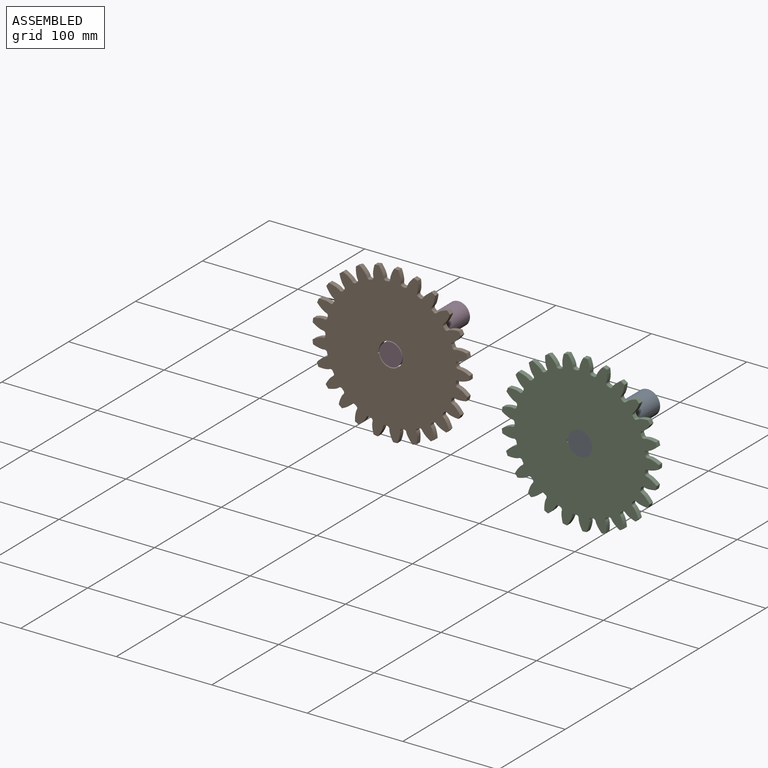
[diagram: assembled view]
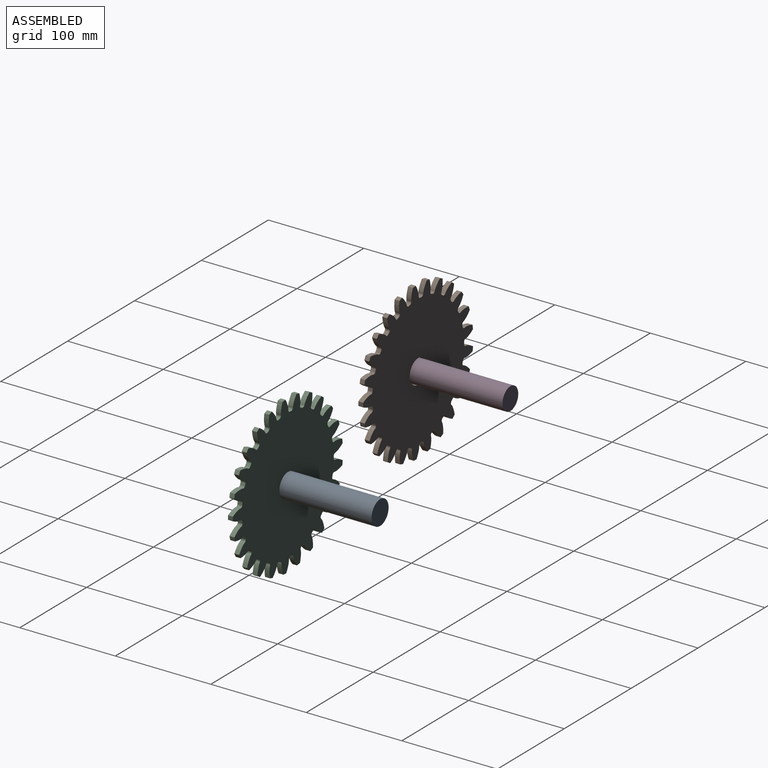
[diagram: assembled view, second angle]
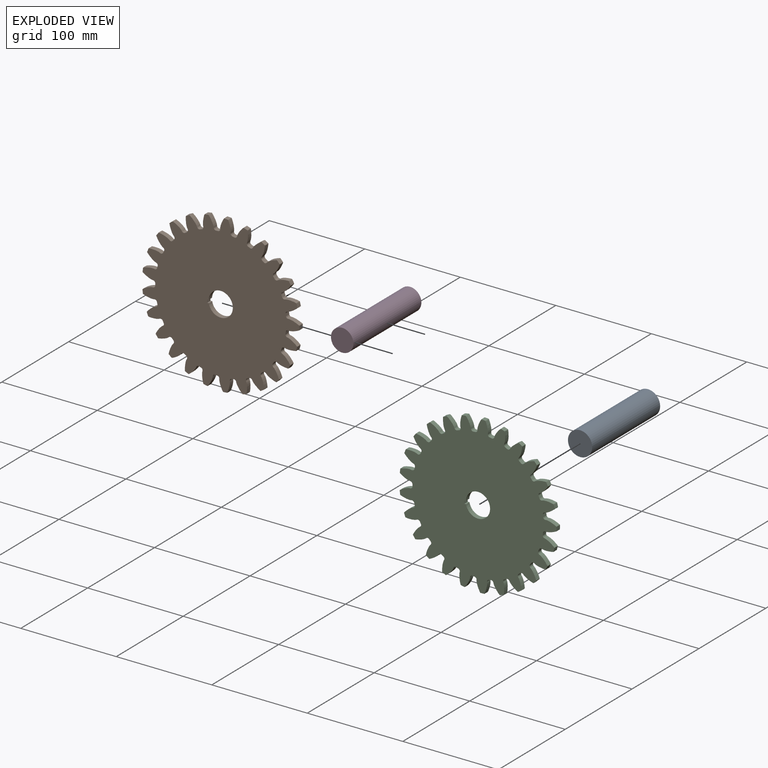
[diagram: exploded view]
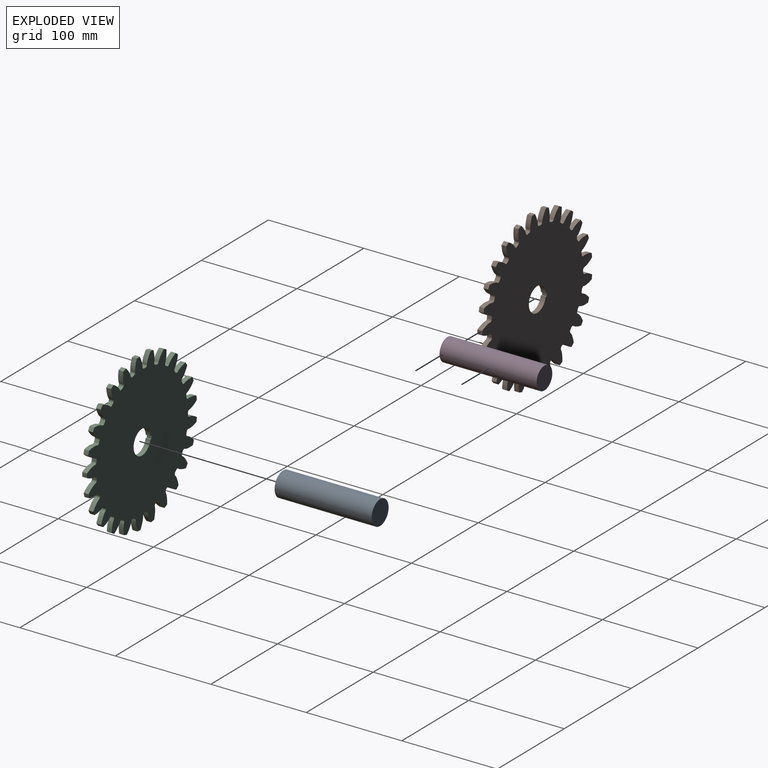
[diagram: exploded view, second angle]
ASSEMBLY  parts=4 mates=2
PART A: 3 faces, bbox 25.4x101.6x25.4 mm
  f0: cylinder r=12.7mm len=101.6mm, axis (0,1,0), area 8107.3mm2, adj f1,f2
  f1: plane 25.4x25.4mm, normal (0,-1,0), area 506.7mm2, adj f0
  f2: plane 25.4x25.4mm, normal (0,1,0), area 506.7mm2, adj f0
PART B: 156 faces, bbox 164.2x5.1x164.5 mm
  f0: cylinder r=82.3mm len=5.08mm, axis (0,1,0), area 22.3mm2, adj f24,f30,f141,f153
  f1: cylinder r=82.3mm len=5.08mm, axis (0,1,0), area 22.3mm2, adj f24,f30,f148,f151
  f2: cylinder r=82.3mm len=5.08mm, axis (0,1,0), area 22.3mm2, adj f24,f30,f136,f143
  f3: cylinder r=82.3mm len=5.08mm, axis (0,1,0), area 22.3mm2, adj f24,f30,f131,f138
  f4: cylinder r=82.3mm len=5.08mm, axis (0,1,0), area 22.3mm2, adj f24,f30,f126,f133
  f5: cylinder r=82.3mm len=5.08mm, axis (0,1,0), area 22.3mm2, adj f24,f30,f116,f128
  f6: cylinder r=82.3mm len=5.08mm, axis (0,1,0), area 22.3mm2, adj f24,f30,f111,f123
  f7: cylinder r=82.3mm len=5.08mm, axis (0,1,0), area 22.3mm2, adj f24,f30,f118,f121
  f8: cylinder r=82.3mm len=5.08mm, axis (0,1,0), area 22.3mm2, adj f24,f30,f106,f113
  f9: cylinder r=82.3mm len=5.08mm, axis (0,1,0), area 22.3mm2, adj f24,f30,f101,f108
  f10: cylinder r=82.3mm len=5.08mm, axis (0,1,0), area 22.3mm2, adj f24,f30,f96,f103
  f11: cylinder r=82.3mm len=5.08mm, axis (0,1,0), area 22.3mm2, adj f24,f30,f81,f98
  f12: cylinder r=82.3mm len=5.08mm, axis (0,1,0), area 22.3mm2, adj f24,f30,f31,f93
  f13: cylinder r=82.3mm len=5.08mm, axis (0,1,0), area 22.3mm2, adj f24,f30,f88,f91
  f14: cylinder r=82.3mm len=5.08mm, axis (0,1,0), area 22.3mm2, adj f24,f30,f76,f83
  f15: cylinder r=82.3mm len=5.08mm, axis (0,1,0), area 22.3mm2, adj f24,f30,f78,f86
  f16: cylinder r=82.3mm len=5.08mm, axis (0,1,0), area 22.3mm2, adj f24,f30,f73,f146
  f17: cylinder r=82.3mm len=5.08mm, axis (0,1,0), area 22.3mm2, adj f24,f30,f68,f71
  f18: cylinder r=82.3mm len=5.08mm, axis (0,1,0), area 22.3mm2, adj f24,f30,f63,f66
  f19: cylinder r=82.3mm len=5.08mm, axis (0,1,0), area 22.3mm2, adj f24,f30,f58,f61
  f20: cylinder r=82.3mm len=5.08mm, axis (0,1,0), area 22.3mm2, adj f24,f30,f46,f53
  f21: cylinder r=82.3mm len=5.08mm, axis (0,1,0), area 22.3mm2, adj f24,f30,f36,f48
  f22: cylinder r=82.3mm len=5.08mm, axis (0,1,0), area 22.3mm2, adj f24,f30,f43,f56
  f23: cylinder r=82.3mm len=5.08mm, axis (0,1,0), area 22.3mm2, adj f24,f30,f38,f41
  f24: plane 164.51x164.2mm, normal (0,-1,0), area 17460.3mm2, adj f0,f1,f2,f3,f4,f5,f6,f7
  f25: plane 5.08x1.69mm, normal (-1,0,0), area 8.6mm2, adj f24,f26,f28,f30
  f26: cylinder r=12.7mm len=25.4mm, axis (0,1,0), area 389.2mm2, adj f24,f25,f27,f30
  f27: plane 5.08x1.69mm, normal (1,0,0), area 8.6mm2, adj f24,f26,f28,f30
  f28: plane 5.08x3.18mm, normal (0,0,-1), area 16.1mm2, adj f24,f25,f27,f30
  f29: cylinder r=82.3mm len=5.08mm, axis (0,1,0), area 22.3mm2, adj f24,f30,f33,f51
  f30: plane 164.51x164.2mm, normal (0,1,0), area 17460.3mm2, adj f0,f1,f2,f3,f4,f5,f6,f7
  f31: extruded ~11.13x5.08mm, area 62.2mm2, adj f12,f24,f30,f34
  f32: cylinder r=68.58mm len=5.08mm, axis (0,1,0), area 10.6mm2, adj f24,f30,f34,f35
  f33: extruded ~11.13x5.08mm, area 62.2mm2, adj f24,f29,f30,f35
  f34: cylinder r=2.31mm len=5.08mm, axis (0,1,0), area 18mm2, adj f24,f30,f31,f32
  f35: cylinder r=2.31mm len=5.08mm, axis (0,1,0), area 18mm2, adj f24,f30,f32,f33
  f36: extruded ~11.36x5.08mm, area 62.2mm2, adj f21,f24,f30,f39
  f37: cylinder r=68.58mm len=5.08mm, axis (0,1,0), area 10.6mm2, adj f24,f30,f39,f40
  f38: extruded ~11.08x5.08mm, area 62.2mm2, adj f23,f24,f30,f40
  f39: cylinder r=2.31mm len=5.08mm, axis (0,1,0), area 18mm2, adj f24,f30,f36,f37
  f40: cylinder r=2.31mm len=5.08mm, axis (0,1,0), area 18mm2, adj f24,f30,f37,f38
  f41: extruded ~9.97x6.85mm, area 62.2mm2, adj f23,f24,f30,f44
  f42: cylinder r=68.58mm len=5.08mm, axis (0,1,0), area 10.6mm2, adj f24,f30,f44,f45
  f43: extruded ~11.94x5.08mm, area 62.2mm2, adj f22,f24,f30,f45
  f44: cylinder r=2.31mm len=5.08mm, axis (0,1,0), area 18mm2, adj f24,f30,f41,f42
  f45: cylinder r=2.31mm len=5.08mm, axis (0,1,0), area 18mm2, adj f24,f30,f42,f43
  f46: extruded ~12.04x5.08mm, area 62.2mm2, adj f20,f24,f30,f49
  f47: cylinder r=68.58mm len=5.08mm, axis (0,1,0), area 10.6mm2, adj f24,f30,f49,f50
  f48: extruded ~9.52x7.46mm, area 62.2mm2, adj f21,f24,f30,f50
  f49: cylinder r=2.31mm len=5.08mm, axis (0,1,0), area 18mm2, adj f24,f30,f46,f47
  f50: cylinder r=2.31mm len=5.08mm, axis (0,1,0), area 18mm2, adj f24,f30,f47,f48
  f51: extruded ~11.96x5.08mm, area 62.2mm2, adj f24,f29,f30,f54
  f52: cylinder r=68.58mm len=5.08mm, axis (0,1,0), area 10.6mm2, adj f24,f30,f54,f55
  f53: extruded ~9.6x7.37mm, area 62.2mm2, adj f20,f24,f30,f55
  f54: cylinder r=2.31mm len=5.08mm, axis (0,1,0), area 18mm2, adj f24,f30,f51,f52
  f55: cylinder r=2.31mm len=5.08mm, axis (0,1,0), area 18mm2, adj f24,f30,f52,f53
  f56: extruded ~9.12x7.96mm, area 62.2mm2, adj f22,f24,f30,f59
  f57: cylinder r=68.58mm len=5.08mm, axis (0,1,0), area 10.6mm2, adj f24,f30,f59,f60
  f58: extruded ~12.05x5.08mm, area 62.2mm2, adj f19,f24,f30,f60
  f59: cylinder r=2.31mm len=5.08mm, axis (0,1,0), area 18mm2, adj f24,f30,f56,f57
  f60: cylinder r=2.31mm len=5.08mm, axis (0,1,0), area 18mm2, adj f24,f30,f57,f58
  f61: extruded ~10.81x5.44mm, area 62.2mm2, adj f19,f24,f30,f64
  f62: cylinder r=68.58mm len=5.08mm, axis (0,1,0), area 10.6mm2, adj f24,f30,f64,f65
  f63: extruded ~11.4x5.08mm, area 62.2mm2, adj f18,f24,f30,f65
  f64: cylinder r=2.31mm len=5.08mm, axis (0,1,0), area 18mm2, adj f24,f30,f61,f62
  f65: cylinder r=2.31mm len=5.08mm, axis (0,1,0), area 18mm2, adj f24,f30,f62,f63
  f66: extruded ~11.82x5.08mm, area 62.2mm2, adj f18,f24,f30,f69
  f67: cylinder r=68.58mm len=5.08mm, axis (0,1,0), area 10.6mm2, adj f24,f30,f69,f70
  f68: extruded ~10.04x6.75mm, area 62.2mm2, adj f17,f24,f30,f70
  f69: cylinder r=2.31mm len=5.08mm, axis (0,1,0), area 18mm2, adj f24,f30,f66,f67
  f70: cylinder r=2.31mm len=5.08mm, axis (0,1,0), area 18mm2, adj f24,f30,f67,f68
  f71: extruded ~12.09x5.08mm, area 62.2mm2, adj f17,f24,f30,f74
  f72: cylinder r=68.58mm len=5.08mm, axis (0,1,0), area 10.6mm2, adj f24,f30,f74,f75
  f73: extruded ~9.04x8.05mm, area 62.2mm2, adj f16,f24,f30,f75
  f74: cylinder r=2.31mm len=5.08mm, axis (0,1,0), area 18mm2, adj f24,f30,f71,f72
  f75: cylinder r=2.31mm len=5.08mm, axis (0,1,0), area 18mm2, adj f24,f30,f72,f73
  f76: extruded ~11.08x5.08mm, area 62.2mm2, adj f14,f24,f30,f79
  f77: cylinder r=68.58mm len=5.08mm, axis (0,1,0), area 10.6mm2, adj f24,f30,f79,f80
  f78: extruded ~11.36x5.08mm, area 62.2mm2, adj f15,f24,f30,f80
  f79: cylinder r=2.31mm len=5.08mm, axis (0,1,0), area 18mm2, adj f24,f30,f76,f77
  f80: cylinder r=2.31mm len=5.08mm, axis (0,1,0), area 18mm2, adj f24,f30,f77,f78
  f81: extruded ~11.94x5.08mm, area 62.2mm2, adj f11,f24,f30,f84
  f82: cylinder r=68.58mm len=5.08mm, axis (0,1,0), area 10.6mm2, adj f24,f30,f84,f85
  f83: extruded ~9.97x6.85mm, area 62.2mm2, adj f14,f24,f30,f85
  f84: cylinder r=2.31mm len=5.08mm, axis (0,1,0), area 18mm2, adj f24,f30,f81,f82
  f85: cylinder r=2.31mm len=5.08mm, axis (0,1,0), area 18mm2, adj f24,f30,f82,f83
  f86: extruded ~9.52x7.46mm, area 62.2mm2, adj f15,f24,f30,f89
  f87: cylinder r=68.58mm len=5.08mm, axis (0,1,0), area 10.6mm2, adj f24,f30,f89,f90
  f88: extruded ~12.04x5.08mm, area 62.2mm2, adj f13,f24,f30,f90
  f89: cylinder r=2.31mm len=5.08mm, axis (0,1,0), area 18mm2, adj f24,f30,f86,f87
  f90: cylinder r=2.31mm len=5.08mm, axis (0,1,0), area 18mm2, adj f24,f30,f87,f88
  f91: extruded ~9.6x7.37mm, area 62.2mm2, adj f13,f24,f30,f94
  f92: cylinder r=68.58mm len=5.08mm, axis (0,1,0), area 10.6mm2, adj f24,f30,f94,f95
  f93: extruded ~11.96x5.08mm, area 62.2mm2, adj f12,f24,f30,f95
  f94: cylinder r=2.31mm len=5.08mm, axis (0,1,0), area 18mm2, adj f24,f30,f91,f92
  f95: cylinder r=2.31mm len=5.08mm, axis (0,1,0), area 18mm2, adj f24,f30,f92,f93
  f96: extruded ~12.05x5.08mm, area 62.2mm2, adj f10,f24,f30,f99
  f97: cylinder r=68.58mm len=5.08mm, axis (0,1,0), area 10.6mm2, adj f24,f30,f99,f100
  f98: extruded ~9.12x7.96mm, area 62.2mm2, adj f11,f24,f30,f100
  f99: cylinder r=2.31mm len=5.08mm, axis (0,1,0), area 18mm2, adj f24,f30,f96,f97
  f100: cylinder r=2.31mm len=5.08mm, axis (0,1,0), area 18mm2, adj f24,f30,f97,f98
  f101: extruded ~11.4x5.08mm, area 62.2mm2, adj f9,f24,f30,f104
  f102: cylinder r=68.58mm len=5.08mm, axis (0,1,0), area 10.6mm2, adj f24,f30,f104,f105
  f103: extruded ~10.81x5.44mm, area 62.2mm2, adj f10,f24,f30,f105
  f104: cylinder r=2.31mm len=5.08mm, axis (0,1,0), area 18mm2, adj f24,f30,f101,f102
  f105: cylinder r=2.31mm len=5.08mm, axis (0,1,0), area 18mm2, adj f24,f30,f102,f103
  f106: extruded ~10.04x6.75mm, area 62.2mm2, adj f8,f24,f30,f109
  f107: cylinder r=68.58mm len=5.08mm, axis (0,1,0), area 10.6mm2, adj f24,f30,f109,f110
  f108: extruded ~11.82x5.08mm, area 62.2mm2, adj f9,f24,f30,f110
  f109: cylinder r=2.31mm len=5.08mm, axis (0,1,0), area 18mm2, adj f24,f30,f106,f107
  f110: cylinder r=2.31mm len=5.08mm, axis (0,1,0), area 18mm2, adj f24,f30,f107,f108
  f111: extruded ~9.04x8.05mm, area 62.2mm2, adj f6,f24,f30,f114
  f112: cylinder r=68.58mm len=5.08mm, axis (0,1,0), area 10.6mm2, adj f24,f30,f114,f115
  f113: extruded ~12.09x5.08mm, area 62.2mm2, adj f8,f24,f30,f115
  f114: cylinder r=2.31mm len=5.08mm, axis (0,1,0), area 18mm2, adj f24,f30,f111,f112
  f115: cylinder r=2.31mm len=5.08mm, axis (0,1,0), area 18mm2, adj f24,f30,f112,f113
  f116: extruded ~11.79x5.08mm, area 62.2mm2, adj f5,f24,f30,f119
  f117: cylinder r=68.58mm len=5.08mm, axis (0,1,0), area 10.6mm2, adj f24,f30,f119,f120
  f118: extruded ~10.38x6.21mm, area 62.2mm2, adj f7,f24,f30,f120
  f119: cylinder r=2.31mm len=5.08mm, axis (0,1,0), area 18mm2, adj f24,f30,f116,f117
  f120: cylinder r=2.31mm len=5.08mm, axis (0,1,0), area 18mm2, adj f24,f30,f117,f118
  f121: extruded ~10.75x5.55mm, area 62.2mm2, adj f7,f24,f30,f124
  f122: cylinder r=68.58mm len=5.08mm, axis (0,1,0), area 10.6mm2, adj f24,f30,f124,f125
  f123: extruded ~11.6x5.08mm, area 62.2mm2, adj f6,f24,f30,f125
  f124: cylinder r=2.31mm len=5.08mm, axis (0,1,0), area 18mm2, adj f24,f30,f121,f122
  f125: cylinder r=2.31mm len=5.08mm, axis (0,1,0), area 18mm2, adj f24,f30,f122,f123
  f126: extruded ~12.1x5.08mm, area 62.2mm2, adj f4,f24,f30,f129
  f127: cylinder r=68.58mm len=5.08mm, axis (0,1,0), area 10.6mm2, adj f24,f30,f129,f130
  f128: extruded ~8.6x8.51mm, area 62.2mm2, adj f5,f24,f30,f130
  f129: cylinder r=2.31mm len=5.08mm, axis (0,1,0), area 18mm2, adj f24,f30,f126,f127
  f130: cylinder r=2.31mm len=5.08mm, axis (0,1,0), area 18mm2, adj f24,f30,f127,f128
  f131: extruded ~11.64x5.08mm, area 62.2mm2, adj f3,f24,f30,f134
  f132: cylinder r=68.58mm len=5.08mm, axis (0,1,0), area 10.6mm2, adj f24,f30,f134,f135
  f133: extruded ~10.44x6.11mm, area 62.2mm2, adj f4,f24,f30,f135
  f134: cylinder r=2.31mm len=5.08mm, axis (0,1,0), area 18mm2, adj f24,f30,f131,f132
  f135: cylinder r=2.31mm len=5.08mm, axis (0,1,0), area 18mm2, adj f24,f30,f132,f133
  f136: extruded ~10.44x6.11mm, area 62.2mm2, adj f2,f24,f30,f139
  f137: cylinder r=68.58mm len=5.08mm, axis (0,1,0), area 10.6mm2, adj f24,f30,f139,f140
  f138: extruded ~11.64x5.08mm, area 62.2mm2, adj f3,f24,f30,f140
  f139: cylinder r=2.31mm len=5.08mm, axis (0,1,0), area 18mm2, adj f24,f30,f136,f137
  f140: cylinder r=2.31mm len=5.08mm, axis (0,1,0), area 18mm2, adj f24,f30,f137,f138
  f141: extruded ~8.6x8.51mm, area 62.2mm2, adj f0,f24,f30,f144
  f142: cylinder r=68.58mm len=5.08mm, axis (0,1,0), area 10.6mm2, adj f24,f30,f144,f145
  f143: extruded ~12.1x5.08mm, area 62.2mm2, adj f2,f24,f30,f145
  f144: cylinder r=2.31mm len=5.08mm, axis (0,1,0), area 18mm2, adj f24,f30,f141,f142
  f145: cylinder r=2.31mm len=5.08mm, axis (0,1,0), area 18mm2, adj f24,f30,f142,f143
  f146: extruded ~11.6x5.08mm, area 62.2mm2, adj f16,f24,f30,f149
  f147: cylinder r=68.58mm len=5.08mm, axis (0,1,0), area 10.6mm2, adj f24,f30,f149,f150
  f148: extruded ~10.75x5.55mm, area 62.2mm2, adj f1,f24,f30,f150
  f149: cylinder r=2.31mm len=5.08mm, axis (0,1,0), area 18mm2, adj f24,f30,f146,f147
  f150: cylinder r=2.31mm len=5.08mm, axis (0,1,0), area 18mm2, adj f24,f30,f147,f148
  f151: extruded ~10.38x6.21mm, area 62.2mm2, adj f1,f24,f30,f154
  f152: cylinder r=68.58mm len=5.08mm, axis (0,1,0), area 10.6mm2, adj f24,f30,f154,f155
  f153: extruded ~11.79x5.08mm, area 62.2mm2, adj f0,f24,f30,f155
  f154: cylinder r=2.31mm len=5.08mm, axis (0,1,0), area 18mm2, adj f24,f30,f151,f152
  f155: cylinder r=2.31mm len=5.08mm, axis (0,1,0), area 18mm2, adj f24,f30,f152,f153
PART C: same geometry as B
PART D: 3 faces, bbox 23.5x101.6x23.5 mm
  f0: cylinder r=11.76mm len=101.6mm, axis (0,1,0), area 7510.3mm2, adj f1,f2
  f1: plane 23.53x23.53mm, normal (0,-1,0), area 434.8mm2, adj f0
  f2: plane 23.53x23.53mm, normal (0,1,0), area 434.8mm2, adj f0
PLACE A t=(-14.64,28.13,-61.52)mm fixed
PLACE B rot(axis=(0,-1,0),93.2deg) t=(-110.92,-69.96,-14.7)mm
PLACE C rot(axis=(0,-1,0),93.2deg) t=(86.13,-68.39,-46.81)mm
PLACE D t=(-8.49,26.56,-29.41)mm fixed
MATE revolute C.f0 <-> A.f0  axis (0,-1,0) through (86.96,-73.47,-61.52)mm
MATE revolute D.f0 <-> B.f0  axis (0,-1,0) through (-110.09,-75.04,-29.41)mm
